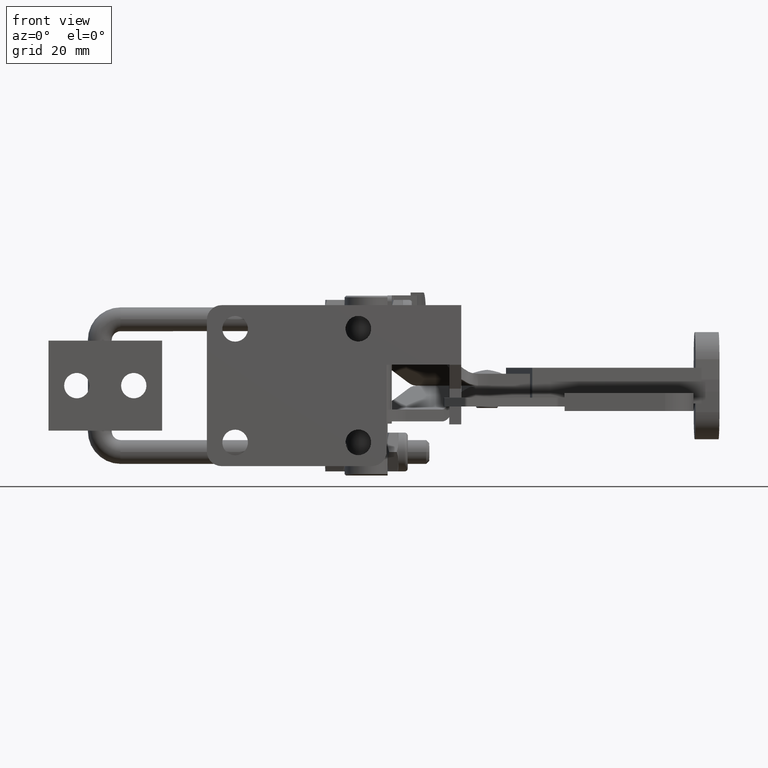
[diagram: clean part render]
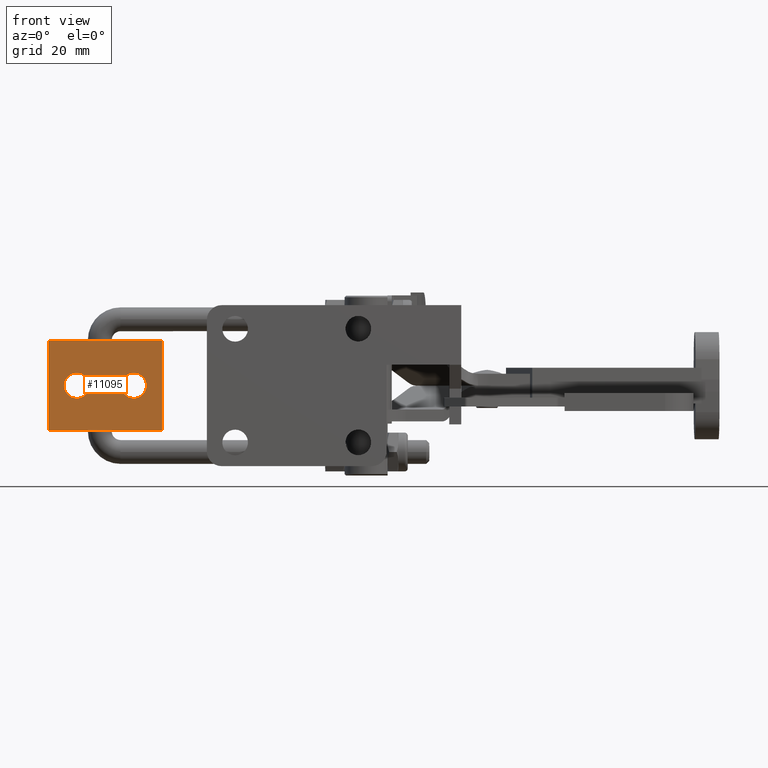
[diagram: same view with one face highlighted and labeled with its STEP entity id]
A machine part, front view. The second image highlights one B-rep face of the part: STEP entity #11095.
In plain terms, the highlighted planar face has unit normal (-0, 1, 0).
Its self-contained STEP definition (entity closure, byte-faithful):
#99 = ORIENTED_EDGE ( 'NONE', *, *, #11394, .T. ) ;
#260 = EDGE_LOOP ( 'NONE', ( #1784, #3591 ) ) ;
#896 = LINE ( 'NONE', #8191, #3613 ) ;
#1588 = VERTEX_POINT ( 'NONE', #15250 ) ;
#1750 = ORIENTED_EDGE ( 'NONE', *, *, #4426, .F. ) ;
#1784 = ORIENTED_EDGE ( 'NONE', *, *, #3868, .F. ) ;
#1792 = CARTESIAN_POINT ( 'NONE',  ( -53.10000000000011500, -5.276628427439655100E-015, 15.10000000000000000 ) ) ;
#1896 = CIRCLE ( 'NONE', #9521, 4.250000000000003600 ) ;
#2001 = DIRECTION ( 'NONE',  ( 1.000000000000000000, 8.928305291793320600E-017, -0.0000000000000000000 ) ) ;
#2285 = LINE ( 'NONE', #5322, #5410 ) ;
#2469 = ORIENTED_EDGE ( 'NONE', *, *, #12622, .F. ) ;
#2485 = EDGE_LOOP ( 'NONE', ( #3791, #2469, #1750, #99 ) ) ;
#2863 = CARTESIAN_POINT ( 'NONE',  ( -14.99999999999994300, -1.874944111266384900E-015, -15.10000000000000000 ) ) ;
#2930 = FACE_BOUND ( 'NONE', #9099, .T. ) ;
#2936 = DIRECTION ( 'NONE',  ( 1.000000000000000000, 8.928305291793320600E-017, -0.0000000000000000000 ) ) ;
#3267 = FACE_BOUND ( 'NONE', #260, .T. ) ;
#3591 = ORIENTED_EDGE ( 'NONE', *, *, #13087, .F. ) ;
#3613 = VECTOR ( 'NONE', #8102, 1000.000000000000000 ) ;
#3791 = ORIENTED_EDGE ( 'NONE', *, *, #14913, .T. ) ;
#3868 = EDGE_CURVE ( 'NONE', #4427, #13588, #6200, .T. ) ;
#4061 = DIRECTION ( 'NONE',  ( 1.000000000000000000, 1.479750996568136900E-016, 0.0000000000000000000 ) ) ;
#4426 = EDGE_CURVE ( 'NONE', #12866, #7582, #8220, .T. ) ;
#4427 = VERTEX_POINT ( 'NONE', #5915 ) ;
#4432 = CARTESIAN_POINT ( 'NONE',  ( -53.10000000000011500, -5.276628427439655100E-015, -15.10000000000000000 ) ) ;
#4628 = AXIS2_PLACEMENT_3D ( 'NONE', #11027, #6159, #4061 ) ;
#5031 = AXIS2_PLACEMENT_3D ( 'NONE', #6433, #6163, #6149 ) ;
#5131 = AXIS2_PLACEMENT_3D ( 'NONE', #13107, #12961, #12939 ) ;
#5322 = CARTESIAN_POINT ( 'NONE',  ( -14.99999999999994300, -1.874944111266384900E-015, 15.10000000000000000 ) ) ;
#5334 = DIRECTION ( 'NONE',  ( -0.0000000000000000000, -0.0000000000000000000, -1.000000000000000000 ) ) ;
#5410 = VECTOR ( 'NONE', #5334, 1000.000000000000000 ) ;
#5533 = VERTEX_POINT ( 'NONE', #4432 ) ;
#5567 = CIRCLE ( 'NONE', #10875, 4.250000000000000000 ) ;
#5915 = CARTESIAN_POINT ( 'NONE',  ( -20.25000000000009900, -4.156464037133253800E-016, -2.677711605089225000E-032 ) ) ;
#5989 = VERTEX_POINT ( 'NONE', #10018 ) ;
#6149 = DIRECTION ( 'NONE',  ( 1.000000000000000000, 1.479750996568134700E-016, 0.0000000000000000000 ) ) ;
#6159 = DIRECTION ( 'NONE',  ( 1.479750996568136200E-016, -1.000000000000000000, 0.0000000000000000000 ) ) ;
#6163 = DIRECTION ( 'NONE',  ( 1.479750996568136200E-016, -1.000000000000000000, 0.0000000000000000000 ) ) ;
#6200 = CIRCLE ( 'NONE', #4628, 4.250000000000000000 ) ;
#6433 = CARTESIAN_POINT ( 'NONE',  ( -43.60000000000010800, -3.870864980699925400E-015, -2.677711605089225000E-032 ) ) ;
#6660 = VERTEX_POINT ( 'NONE', #7876 ) ;
#7582 = VERTEX_POINT ( 'NONE', #10560 ) ;
#7876 = CARTESIAN_POINT ( 'NONE',  ( -14.99999999999994300, -1.874944111266384900E-015, -15.10000000000000000 ) ) ;
#8102 = DIRECTION ( 'NONE',  ( -0.0000000000000000000, -0.0000000000000000000, -1.000000000000000000 ) ) ;
#8191 = CARTESIAN_POINT ( 'NONE',  ( -53.10000000000011500, -5.276628427439655100E-015, 15.10000000000000000 ) ) ;
#8220 = LINE ( 'NONE', #9759, #11013 ) ;
#8222 = VECTOR ( 'NONE', #2936, 1000.000000000000000 ) ;
#8301 = EDGE_CURVE ( 'NONE', #1588, #5989, #1896, .T. ) ;
#9099 = EDGE_LOOP ( 'NONE', ( #12087, #13781 ) ) ;
#9164 = FACE_OUTER_BOUND ( 'NONE', #2485, .T. ) ;
#9521 = AXIS2_PLACEMENT_3D ( 'NONE', #13234, #12382, #14369 ) ;
#9759 = CARTESIAN_POINT ( 'NONE',  ( -14.99999999999994300, -1.874944111266384900E-015, 15.10000000000000000 ) ) ;
#10018 = CARTESIAN_POINT ( 'NONE',  ( -47.85000000000011500, -4.499759154241383800E-015, 5.204748896376247700E-016 ) ) ;
#10319 = CARTESIAN_POINT ( 'NONE',  ( -24.50000000000010300, -1.044540577254783500E-015, -2.677711605089225000E-032 ) ) ;
#10346 = DIRECTION ( 'NONE',  ( 1.479750996568136200E-016, -1.000000000000000000, 0.0000000000000000000 ) ) ;
#10413 = DIRECTION ( 'NONE',  ( 1.000000000000000000, 1.479750996568136900E-016, 0.0000000000000000000 ) ) ;
#10560 = CARTESIAN_POINT ( 'NONE',  ( -14.99999999999994300, -1.874944111266384900E-015, 15.10000000000000000 ) ) ;
#10875 = AXIS2_PLACEMENT_3D ( 'NONE', #10319, #10346, #10413 ) ;
#11013 = VECTOR ( 'NONE', #2001, 1000.000000000000000 ) ;
#11027 = CARTESIAN_POINT ( 'NONE',  ( -24.50000000000010300, -1.044540577254783500E-015, -2.677711605089225000E-032 ) ) ;
#11095 = ADVANCED_FACE ( 'NONE', ( #3267, #2930, #9164 ), #13345, .F. ) ;
#11382 = LINE ( 'NONE', #2863, #8222 ) ;
#11394 = EDGE_CURVE ( 'NONE', #12866, #5533, #896, .T. ) ;
#12087 = ORIENTED_EDGE ( 'NONE', *, *, #8301, .F. ) ;
#12382 = DIRECTION ( 'NONE',  ( 1.479750996568136200E-016, -1.000000000000000000, 0.0000000000000000000 ) ) ;
#12622 = EDGE_CURVE ( 'NONE', #7582, #6660, #2285, .T. ) ;
#12866 = VERTEX_POINT ( 'NONE', #1792 ) ;
#12939 = DIRECTION ( 'NONE',  ( -1.000000000000000000, -8.928305291793320600E-017, 0.0000000000000000000 ) ) ;
#12961 = DIRECTION ( 'NONE',  ( -8.928305291793320600E-017, 1.000000000000000000, 0.0000000000000000000 ) ) ;
#13087 = EDGE_CURVE ( 'NONE', #13588, #4427, #5567, .T. ) ;
#13107 = CARTESIAN_POINT ( 'NONE',  ( -14.99999999999994300, -1.874944111266384900E-015, 15.10000000000000000 ) ) ;
#13197 = EDGE_CURVE ( 'NONE', #5989, #1588, #15161, .T. ) ;
#13234 = CARTESIAN_POINT ( 'NONE',  ( -43.60000000000010800, -3.870864980699925400E-015, -2.677711605089225000E-032 ) ) ;
#13345 = PLANE ( 'NONE',  #5131 ) ;
#13588 = VERTEX_POINT ( 'NONE', #14251 ) ;
#13781 = ORIENTED_EDGE ( 'NONE', *, *, #13197, .F. ) ;
#14251 = CARTESIAN_POINT ( 'NONE',  ( -28.75000000000010300, -1.673434750796241700E-015, 5.204748896376255600E-016 ) ) ;
#14369 = DIRECTION ( 'NONE',  ( 1.000000000000000000, 1.479750996568134700E-016, 0.0000000000000000000 ) ) ;
#14913 = EDGE_CURVE ( 'NONE', #5533, #6660, #11382, .T. ) ;
#15161 = CIRCLE ( 'NONE', #5031, 4.250000000000003600 ) ;
#15250 = CARTESIAN_POINT ( 'NONE',  ( -39.35000000000010800, -3.241970807158467800E-015, -2.677711605089225000E-032 ) ) ;